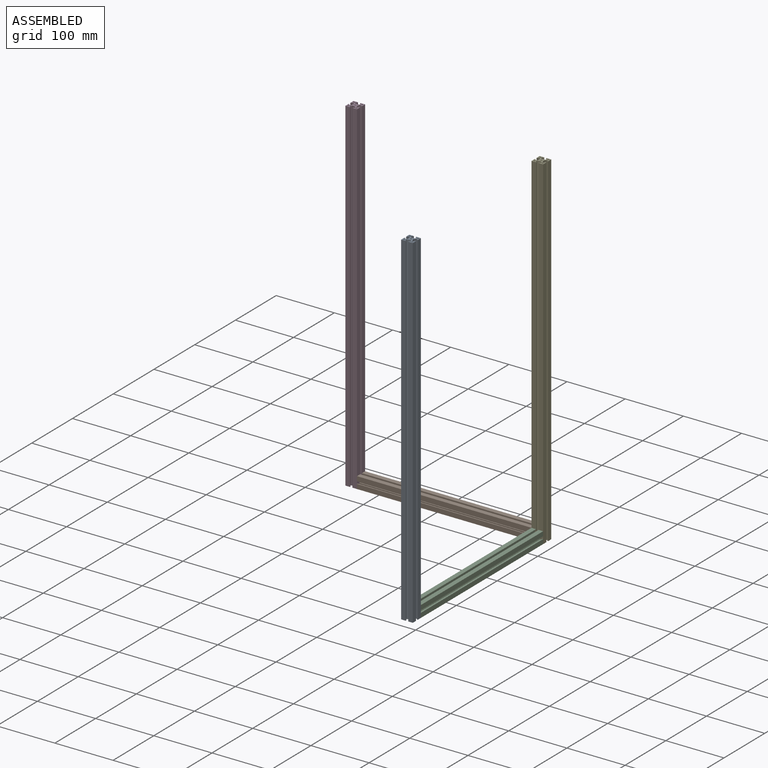
[diagram: assembled view]
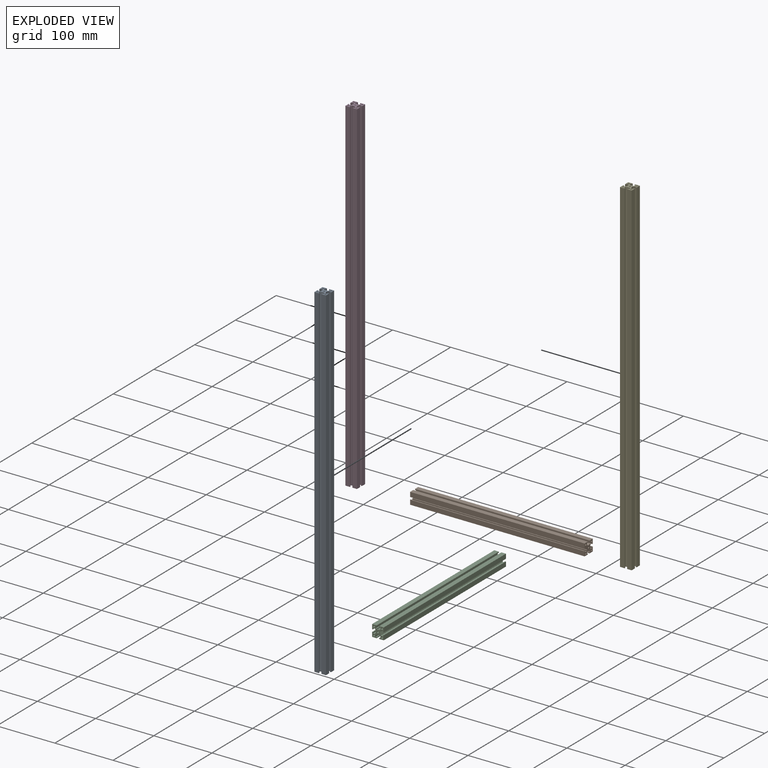
[diagram: exploded view]
GUIDED TOUR — MATED ASSEMBLY (Onshape document d7d5ee20f3b3feef771122a2, AutoMate assembly d7d5ee20f3b3feef771122a2_34c85ee1a74209291e5ee095_835ac0c75a57625ac6b1f9aa_default)

This assembly has 5 components, labeled P0..P4 below (a component is one placed occurrence of a part; the same part can appear more than once), held together by 12 mates. A mate is a constraint between two components; its type names the relative motion it leaves free:
  PLANAR — leaves sliding in the plane through the listed point (normal = the listed direction) and rotation about that normal free.
Axis/direction vectors are unit vectors and 'through' points are millimeter coordinates, both in the assembly's world frame.

MATES
  1. PLANAR "Planar 5": P3 <-> P1, direction (0.000, 0.000, -1.000) through (67.06, -72.79, 283.51) mm
  2. PLANAR "Planar 3": P1 <-> P4, direction (1.000, 0.000, 0.000) through (377.06, -69.49, 295.66) mm
  3. PLANAR "Planar 11": P2 <-> P0, direction (1.000, 0.000, 0.000) through (397.06, -232.79, 287.43) mm
  4. PLANAR "Planar 2": P4 <-> P1, direction (0.000, 0.000, -1.000) through (388.06, -68.74, 283.51) mm
  5. PLANAR "Planar 9": P4 <-> P2, direction (1.000, 0.000, 0.000) through (397.06, -78.87, 578.51) mm
  6. PLANAR "Planar 10": P2 <-> P0, direction (0.000, -1.000, 0.000) through (387.06, -382.79, 293.51) mm
  7. PLANAR "Planar 4": P3 <-> P1, direction (1.000, 0.000, 0.000) through (77.06, -66.72, 578.51) mm
  8. PLANAR "Planar 8": P2 <-> P4, direction (0.000, 0.000, -1.000) through (380.98, -232.79, 283.51) mm
  9. PLANAR "Planar 1": P4 <-> P1, direction (0.000, -1.000, 0.000) through (393.13, -82.79, 578.51) mm
  10. PLANAR "Planar 6": P3 <-> P1, direction (0.000, 1.000, 0.000) through (73.13, -62.79, 578.51) mm
  11. PLANAR "Planar 12": P0 <-> P2, direction (0.000, 0.000, -1.000) through (383.01, -391.79, 283.51) mm
  12. PLANAR "Planar 7": P2 <-> P4, direction (0.000, 1.000, 0.000) through (387.06, -82.79, 293.51) mm

ASSEMBLY ORDER
  1. P3 — the base component [order verified]
  2. P1 [order verified]
  3. P4 [order verified]
  4. P2 [order verified]
  5. P0 [order verified]
Order-tag legend:
  [order verified] — this step's position reverses a verified removal order: the component was checked to insert without passing through the ones already placed.

Of the 5 components, 2 carry the full construction recipe — the FeatureScript program that regenerates the part's solid from scratch; the rest are supplied as boundary geometry only.
Each toured component is shown spotlighted twice — in the assembled view, then in the exploded view, where a leader line traces a displaced component back to its assembled socket (saturated green if recipe-attached, orange if geometry-only; every other component desaturated gray) — followed by its recipe or geometry summary and the mates that hold it.
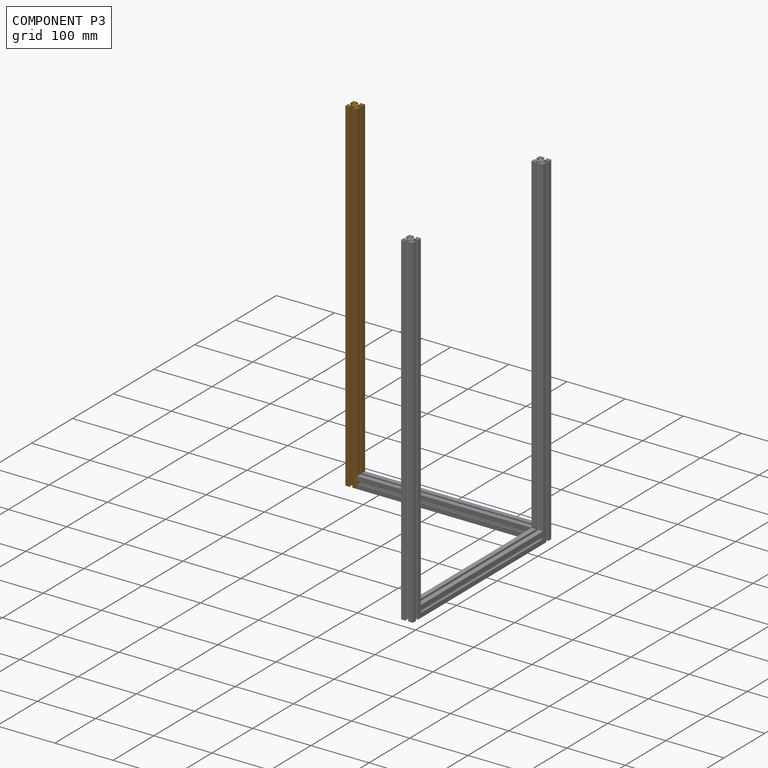
[diagram: component P3 — assembled]
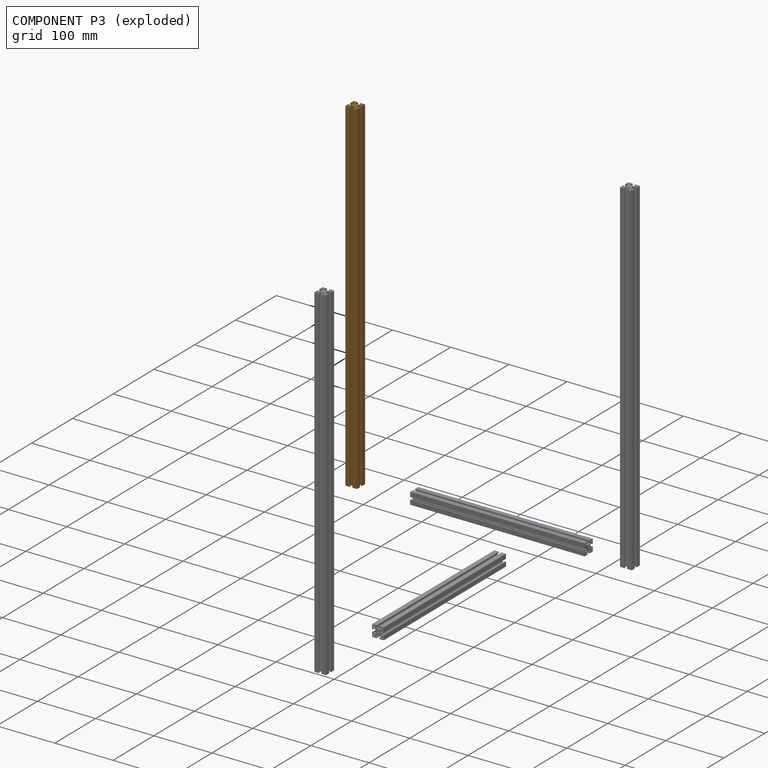
[diagram: component P3 — exploded]
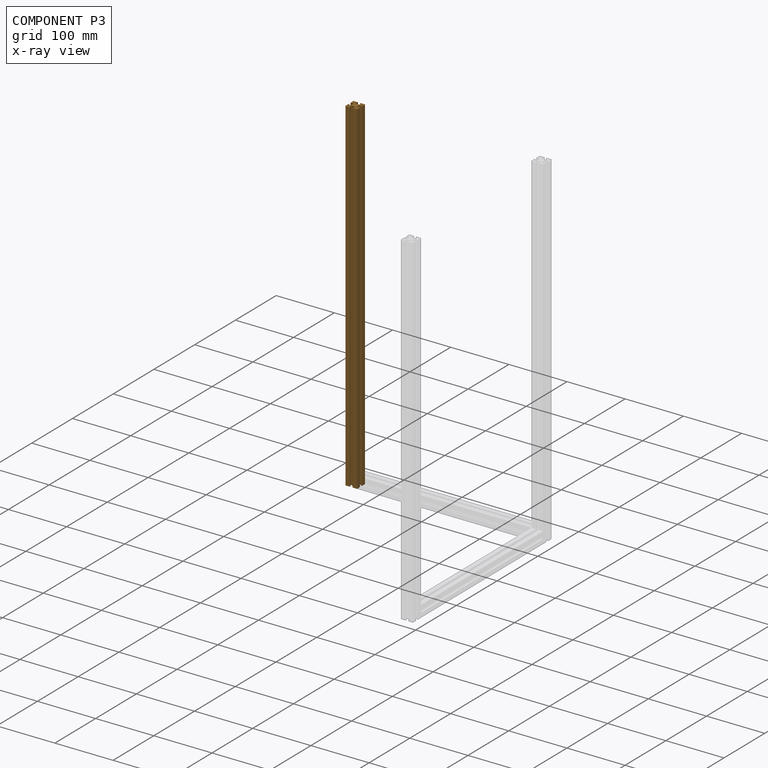
[diagram: component P3 — x-ray view]
COMPONENT P3 — geometry summary (no construction recipe available for this part):
  bounding box: 590.0 x 20.0 x 20.0 mm
  B-rep topology: 1 solid, 51 faces, 294 edges
  volume: 116299 mm^3 (49% of its bounding box)
  symmetry: 2-fold rotationally symmetric about the x axis; 2-fold rotationally symmetric about the y axis; 4-fold rotationally symmetric about the z axis; mirror-symmetric across its x mid-plane, y mid-plane, z mid-plane
Held by: PLANAR mate "Planar 5" to P1; PLANAR mate "Planar 4" to P1; PLANAR mate "Planar 6" to P1.
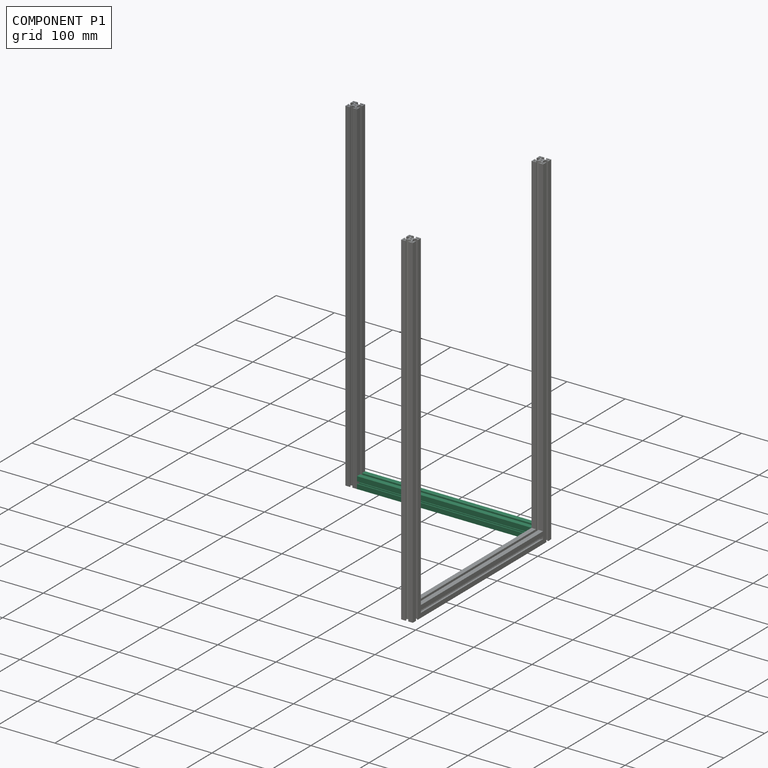
[diagram: component P1 — assembled]
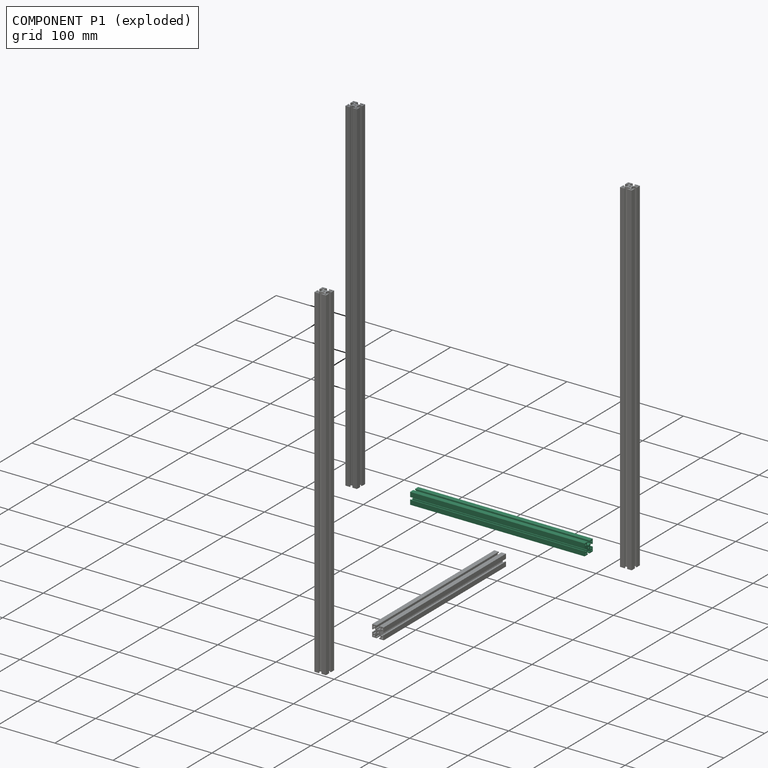
[diagram: component P1 — exploded]
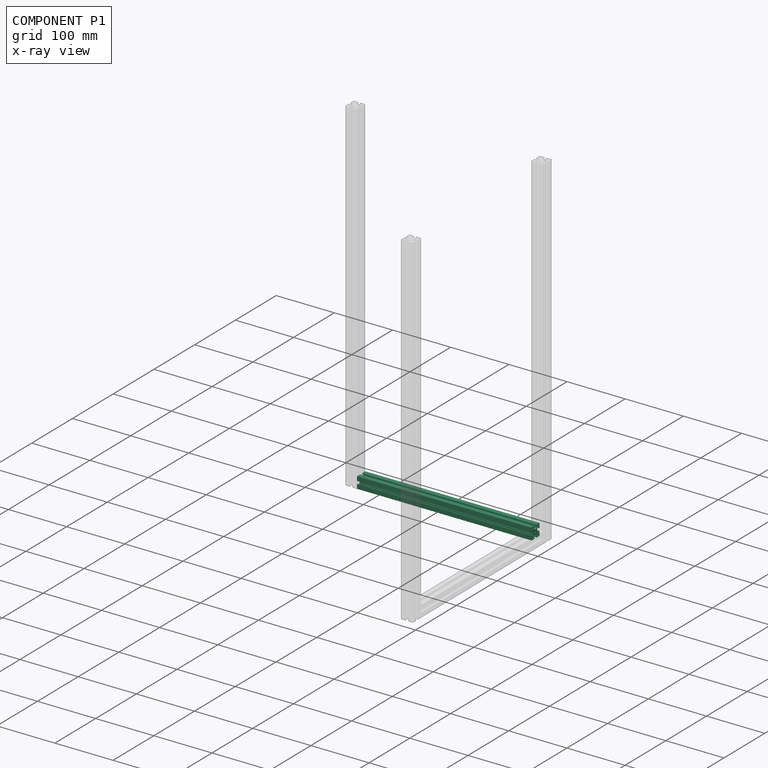
[diagram: component P1 — x-ray view]
COMPONENT P1 — recipe-attached (CADFS 00775080, mesh-verified: the recipe's output STEP matches this component's geometry to below the mesh-comparison resolution (tessellation chordal tolerance ~0.452 mm)).
Held by: PLANAR mate "Planar 5" to P3; PLANAR mate "Planar 3" to P4; PLANAR mate "Planar 2" to P4; PLANAR mate "Planar 4" to P3; PLANAR mate "Planar 1" to P4; PLANAR mate "Planar 6" to P3.
Construction recipe (FeatureScript — the CAD program that rebuilds this solid; sketch coordinates are in the units given by the * unit suffixes, e.g. mm):

FeatureScript 1511;
import(path : "onshape/std/geometry.fs", version : "1511.0");
import(path : "onshape/std/common.fs", version : "1511.0");
const mm = millimeter;
const VERTEX = EntityType.VERTEX;
const EDGE = EntityType.EDGE;
const FACE = EntityType.FACE;
const BODY = EntityType.BODY;
function v(x, y){return vector(x, y);}
function OD(order){return orderDisambiguation(order);}
function OSD(set){return originalSetDisambiguation(set);}
function TD(topology){return topologyDisambiguation(topology);}
function TDD(query){return trueDependencyDisambiguation(query);}
function sQuery(a, b, c) {return sketchEntityQuery(a, b, c);}

annotation { "Feature Type Name" : "Feature", "Feature Type Description" : "" }
export const myFeature = defineFeature(function(context is Context, id is Id, definition is map)
    precondition{}
    {
        {
            var Q0;
            Q0=qCreatedBy(makeId("Top.planeOp"),FACE);
            var sketch = newSketch(context, id + "F0", { "sketchPlane" : qUnion([Q0])});
            skLineSegment(sketch, "E0.bottom", {"start": v(-9.98, 10.12) * mm, "end": v(-2.13, 10.12) * mm});
            skLineSegment(sketch, "E0.top", {"start": v(-9.98, -9.88) * mm, "end": v(-2.13, -9.88) * mm});
            skLineSegment(sketch, "E0.left", {"start": v(-9.98, 10.12) * mm, "end": v(-9.98, 2.27) * mm});
            skLineSegment(sketch, "E0.right", {"start": v(10.02, 10.12) * mm, "end": v(10.02, 2.27) * mm});
            skLineSegment(sketch, "E1.0", {"start": v(-9.98, -6.88) * mm, "end": v(10.02, -6.88) * mm, "construction": true});
            skLineSegment(sketch, "E2.0", {"start": v(-9.98, 7.12) * mm, "end": v(10.02, 7.12) * mm, "construction": true});
            skPoint(sketch, "E3.endSnap0", {"position": v(0.02, -6.88) * mm});
            skLineSegment(sketch, "E4.0", {"start": v(7.02, -9.88) * mm, "end": v(7.02, 10.12) * mm, "construction": true});
            skLineSegment(sketch, "E5.0", {"start": v(-6.98, -9.88) * mm, "end": v(-6.98, 10.12) * mm, "construction": true});
            skLineSegment(sketch, "E6.0", {"start": v(-4.13, 8.62) * mm, "end": v(-2.13, 8.62) * mm});
            skLineSegment(sketch, "E7.0", {"start": v(-4.13, 4.92) * mm, "end": v(-2.13, 4.92) * mm});
            skLineSegment(sketch, "E8.trimOffspring", {"start": v(2.17, 8.62) * mm, "end": v(2.17, 10.12) * mm});
            skLineSegment(sketch, "E9.trimOffspring", {"start": v(4.17, 4.92) * mm, "end": v(4.17, 8.62) * mm});
            skLineSegment(sketch, "E10.MirrorCS", {"start": v(-2.13, 8.62) * mm, "end": v(-2.13, 10.12) * mm});
            skLineSegment(sketch, "E11", {"start": v(-2.13, 3.42) * mm, "end": v(4.17, 4.92) * mm});
            skLineSegment(sketch, "E12.trimOffspring", {"start": v(-2.13, 4.92) * mm, "end": v(-2.13, 3.42) * mm});
            skLineSegment(sketch, "E13.MirrorCS", {"start": v(-4.13, 4.92) * mm, "end": v(-4.13, 8.62) * mm});
            skLineSegment(sketch, "E14.trimOffspring", {"start": v(2.17, 8.62) * mm, "end": v(4.17, 8.62) * mm});
            skLineSegment(sketch, "E15.trimOffspring", {"start": v(2.17, 10.12) * mm, "end": v(10.02, 10.12) * mm});
            skLineSegment(sketch, "E16.1.0", {"start": v(4.82, 4.27) * mm, "end": v(4.82, 2.27) * mm});
            skLineSegment(sketch, "E16.1.1", {"start": v(8.52, 4.27) * mm, "end": v(8.52, 2.27) * mm});
            skLineSegment(sketch, "E16.1.2", {"start": v(3.32, 2.27) * mm, "end": v(4.82, -4.03) * mm});
            skLineSegment(sketch, "E16.1.3", {"start": v(8.52, 2.27) * mm, "end": v(10.02, 2.27) * mm});
            skLineSegment(sketch, "E16.1.4", {"start": v(4.82, -4.03) * mm, "end": v(8.52, -4.03) * mm});
            skLineSegment(sketch, "E16.1.5", {"start": v(4.82, 4.27) * mm, "end": v(8.52, 4.27) * mm});
            skLineSegment(sketch, "E16.1.6", {"start": v(4.82, 2.27) * mm, "end": v(3.32, 2.27) * mm});
            skLineSegment(sketch, "E16.1.7", {"start": v(8.52, -2.03) * mm, "end": v(8.52, -4.03) * mm});
            skLineSegment(sketch, "E16.1.8", {"start": v(8.52, -2.03) * mm, "end": v(10.02, -2.03) * mm});
            skLineSegment(sketch, "E16.2.0", {"start": v(4.17, -4.68) * mm, "end": v(2.17, -4.68) * mm});
            skLineSegment(sketch, "E16.2.1", {"start": v(4.17, -8.38) * mm, "end": v(2.17, -8.38) * mm});
            skLineSegment(sketch, "E16.2.2", {"start": v(2.17, -3.18) * mm, "end": v(-4.13, -4.68) * mm});
            skLineSegment(sketch, "E16.2.3", {"start": v(2.17, -8.38) * mm, "end": v(2.17, -9.88) * mm});
            skLineSegment(sketch, "E16.2.4", {"start": v(-4.13, -4.68) * mm, "end": v(-4.13, -8.38) * mm});
            skLineSegment(sketch, "E16.2.5", {"start": v(4.17, -4.68) * mm, "end": v(4.17, -8.38) * mm});
            skLineSegment(sketch, "E16.2.6", {"start": v(2.17, -4.68) * mm, "end": v(2.17, -3.18) * mm});
            skLineSegment(sketch, "E16.2.7", {"start": v(-2.13, -8.38) * mm, "end": v(-4.13, -8.38) * mm});
            skLineSegment(sketch, "E16.2.8", {"start": v(-2.13, -8.38) * mm, "end": v(-2.13, -9.88) * mm});
            skPoint(sketch, "E16.center", {"position": v(0.02, 0.12) * mm});
            skLineSegment(sketch, "E17.trimOffspring", {"start": v(10.02, -2.03) * mm, "end": v(10.02, -9.88) * mm});
            skLineSegment(sketch, "E18.trimOffspring", {"start": v(2.17, -9.88) * mm, "end": v(10.02, -9.88) * mm});
            skPoint(sketch, "E19.1.7", {"position": v(-4.93, -4.83) * mm});
            skLineSegment(sketch, "E19.2.0", {"start": v(-8.48, 2.27) * mm, "end": v(-9.98, 2.27) * mm});
            skLineSegment(sketch, "E19.2.1", {"start": v(-8.48, -4.03) * mm, "end": v(-8.48, -2.03) * mm});
            skLineSegment(sketch, "E19.2.2", {"start": v(-4.78, 4.27) * mm, "end": v(-8.48, 4.27) * mm});
            skLineSegment(sketch, "E19.2.3", {"start": v(-4.78, -2.03) * mm, "end": v(-3.28, -2.03) * mm});
            skLineSegment(sketch, "E19.2.4", {"start": v(-8.48, -2.03) * mm, "end": v(-9.98, -2.03) * mm});
            skLineSegment(sketch, "E19.2.5", {"start": v(-8.48, 2.27) * mm, "end": v(-8.48, 4.27) * mm});
            skLineSegment(sketch, "E19.2.6", {"start": v(-4.78, -4.03) * mm, "end": v(-4.78, -2.03) * mm});
            skPoint(sketch, "E19.2.7", {"position": v(-6.98, 0.12) * mm});
            skLineSegment(sketch, "E19.2.8", {"start": v(-3.28, -2.03) * mm, "end": v(-4.78, 4.27) * mm});
            skLineSegment(sketch, "E19.2.9", {"start": v(-4.78, -4.03) * mm, "end": v(-8.48, -4.03) * mm});
            skLineSegment(sketch, "E20.trimOffspring", {"start": v(-9.98, -2.03) * mm, "end": v(-9.98, -9.88) * mm});
            skCircle(sketch, "E21", {"center": v(-6.98, 7.12) * mm, "radius": 1.5 * mm});
            skCircle(sketch, "E22", {"center": v(7.02, 7.12) * mm, "radius": 1.5 * mm});
            skCircle(sketch, "E23", {"center": v(7.02, -6.88) * mm, "radius": 1.5 * mm});
            skCircle(sketch, "E24", {"center": v(-6.98, -6.88) * mm, "radius": 1.5 * mm});
            skCircle(sketch, "E25", {"center": v(0.02, 0.12) * mm, "radius": 1.5 * mm});
            skSolve(sketch);
        }
        {
            var Q0;
            Q0=makeQuery(id+"F0.imprint","IMPRINT",FACE,{"disambiguationData":[TD([[makeQuery(id+"F0.imprint","IMPRINT",EDGE,{"derivedFrom":sQuery(id+"F0.wireOp",EDGE,"E0.bottom")}),-1.0]])]});
            extrude(context, id + "F1", {"entities" : qUnion([Q0]), "depth" : 300 * mm, "offsetDistance" : 25 * mm});
        }
    });
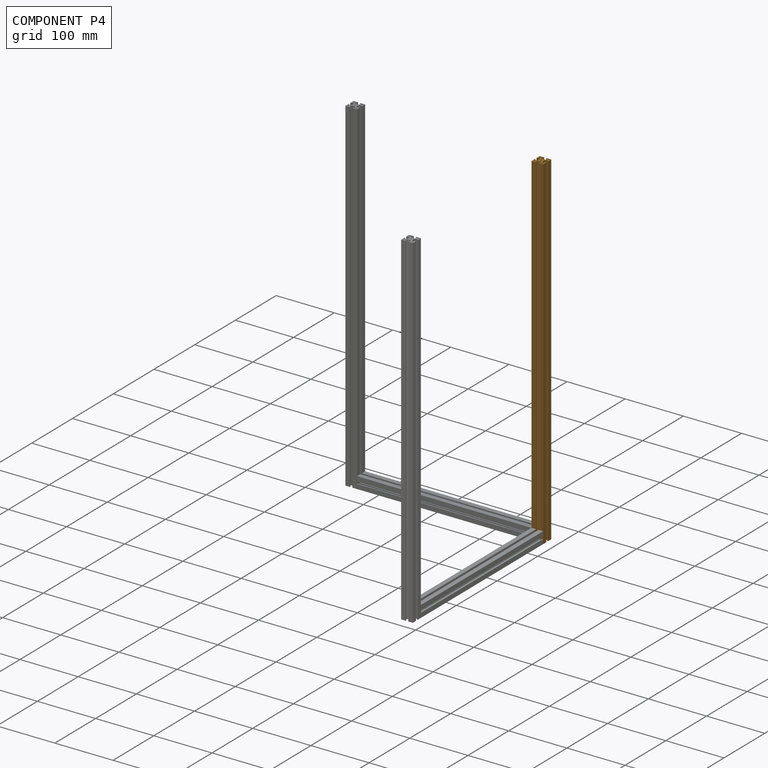
[diagram: component P4 — assembled]
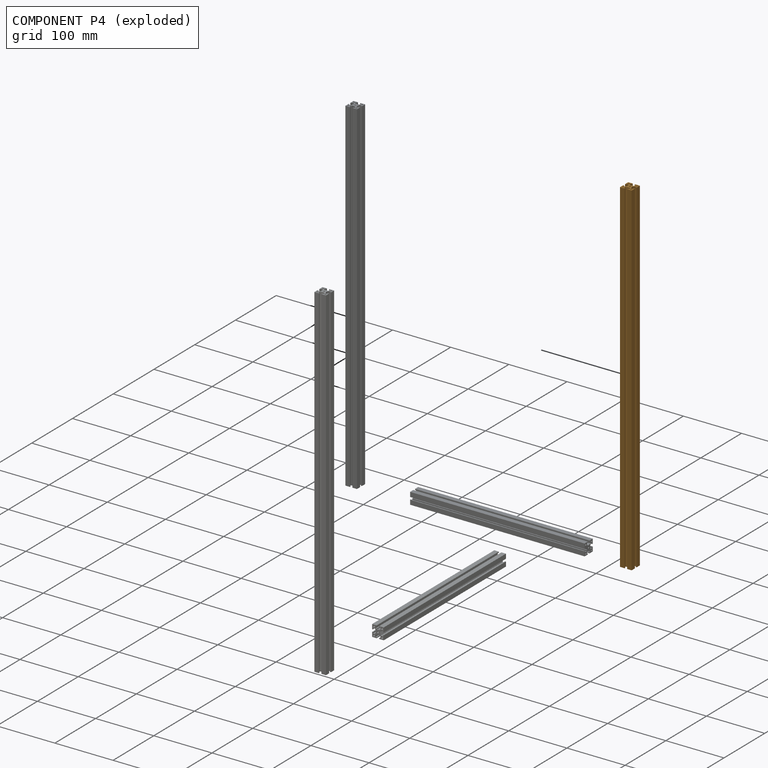
[diagram: component P4 — exploded]
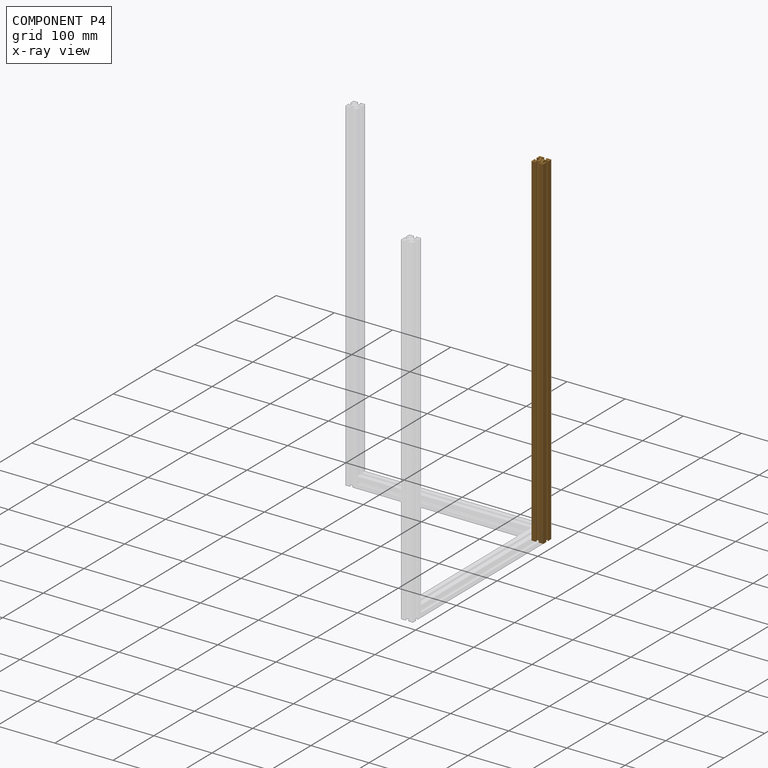
[diagram: component P4 — x-ray view]
COMPONENT P4 — geometry summary (no construction recipe available for this part):
  bounding box: 590.0 x 20.0 x 20.0 mm
  B-rep topology: 1 solid, 51 faces, 294 edges
  volume: 116299 mm^3 (49% of its bounding box)
  symmetry: 2-fold rotationally symmetric about the x axis; 2-fold rotationally symmetric about the y axis; 4-fold rotationally symmetric about the z axis; mirror-symmetric across its x mid-plane, y mid-plane, z mid-plane
Held by: PLANAR mate "Planar 3" to P1; PLANAR mate "Planar 2" to P1; PLANAR mate "Planar 9" to P2; PLANAR mate "Planar 8" to P2; PLANAR mate "Planar 1" to P1; PLANAR mate "Planar 7" to P2.
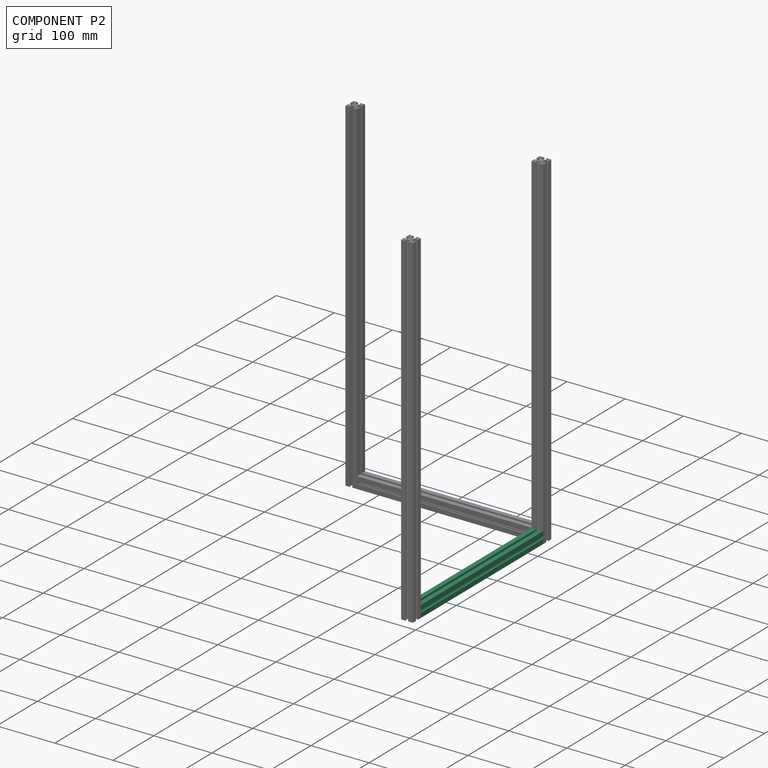
[diagram: component P2 — assembled]
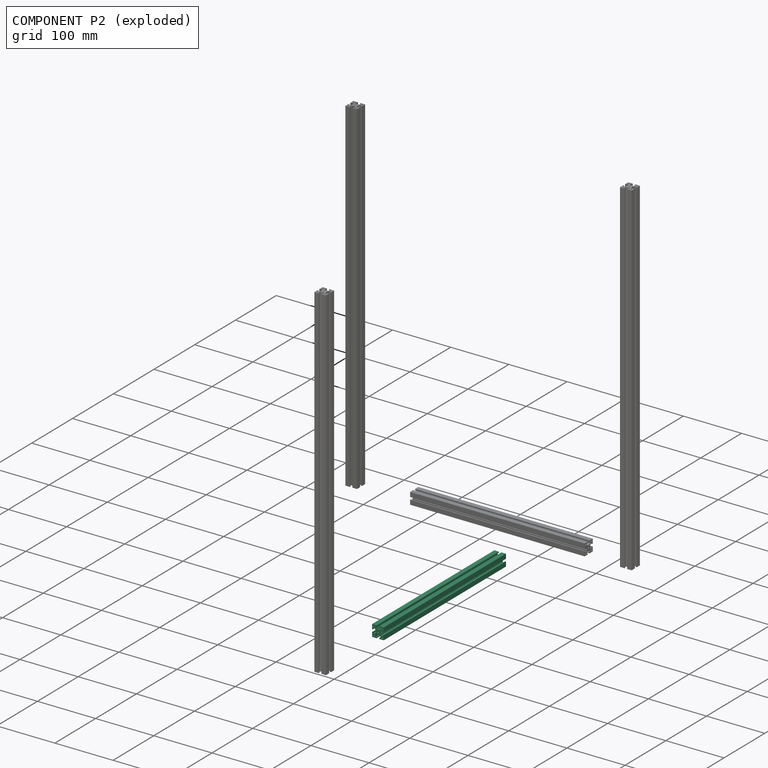
[diagram: component P2 — exploded]
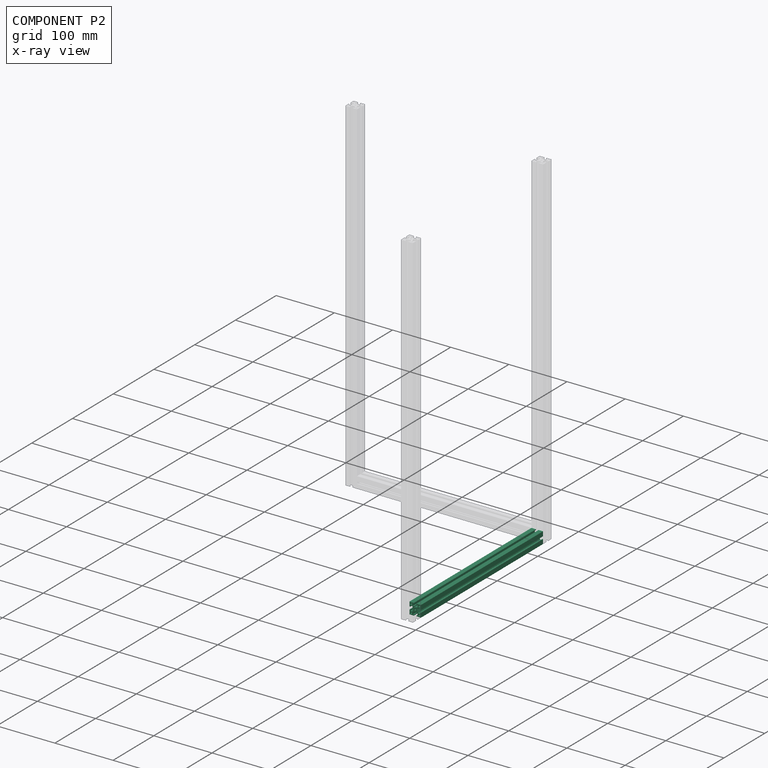
[diagram: component P2 — x-ray view]
COMPONENT P2 — same part as P1 (CADFS 00775080); its construction recipe is shown at P1.
Held by: PLANAR mate "Planar 11" to P0; PLANAR mate "Planar 9" to P4; PLANAR mate "Planar 10" to P0; PLANAR mate "Planar 8" to P4; PLANAR mate "Planar 12" to P0; PLANAR mate "Planar 7" to P4.
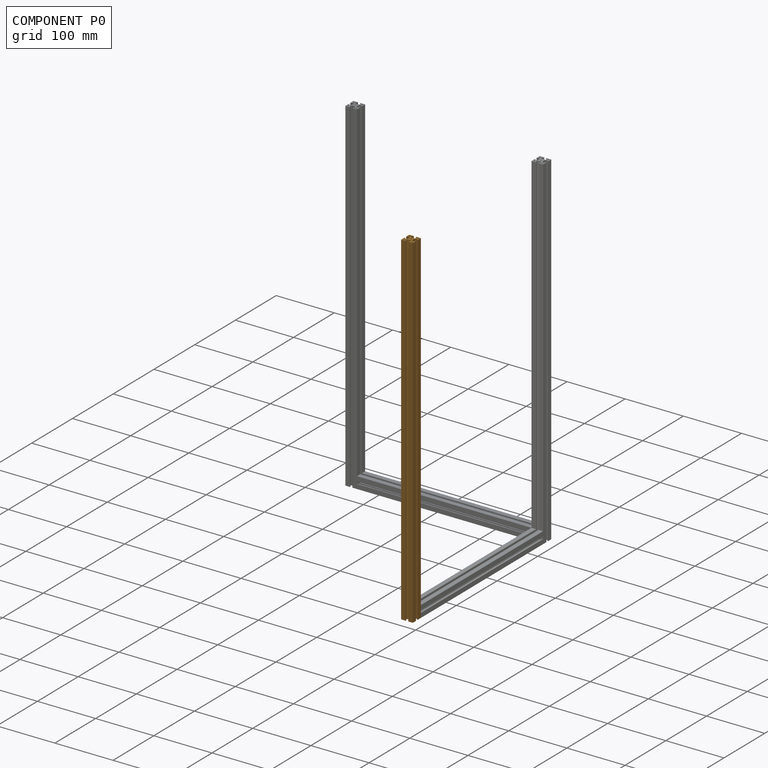
[diagram: component P0 — assembled]
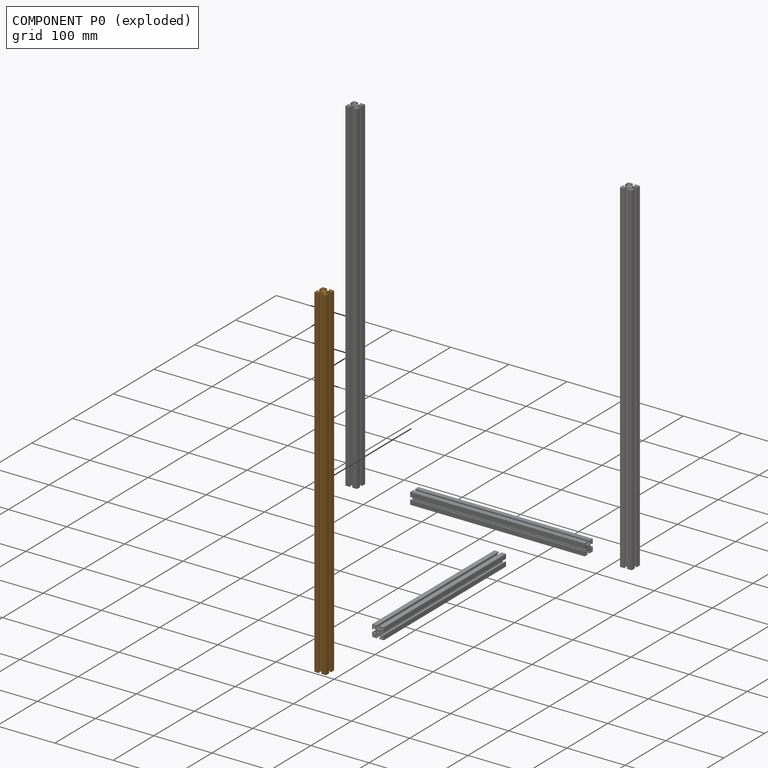
[diagram: component P0 — exploded]
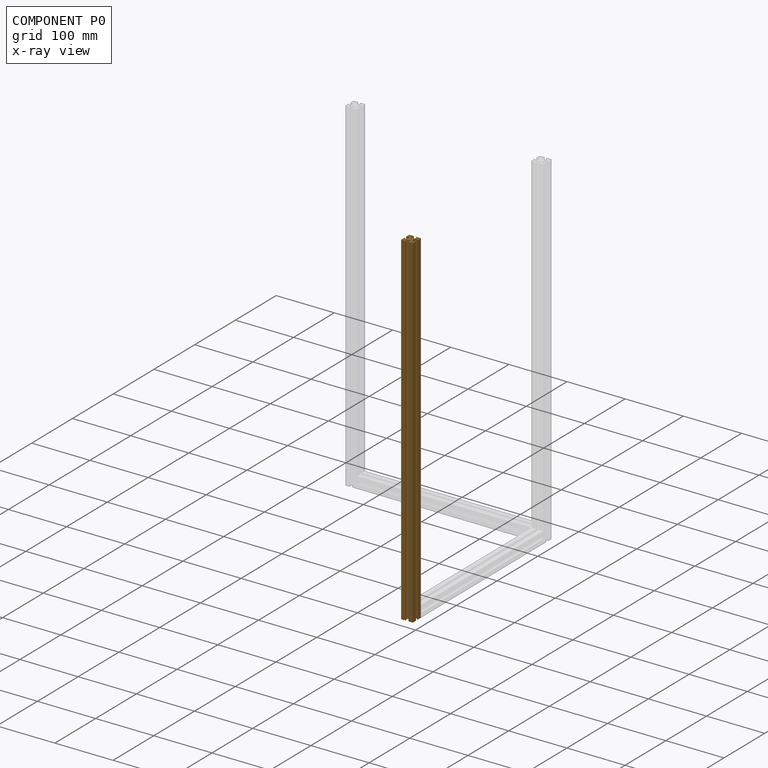
[diagram: component P0 — x-ray view]
COMPONENT P0 — geometry summary (no construction recipe available for this part):
  bounding box: 590.0 x 20.0 x 20.0 mm
  B-rep topology: 1 solid, 51 faces, 294 edges
  volume: 116299 mm^3 (49% of its bounding box)
  symmetry: 2-fold rotationally symmetric about the x axis; 2-fold rotationally symmetric about the y axis; 4-fold rotationally symmetric about the z axis; mirror-symmetric across its x mid-plane, y mid-plane, z mid-plane
Held by: PLANAR mate "Planar 11" to P2; PLANAR mate "Planar 10" to P2; PLANAR mate "Planar 12" to P2.
PROVENANCE & LICENSES
Assembly (occurrences, transforms, mates, per-part STEP geometry): AutoMate dataset, Zenodo record 7776208, CC0.
Construction recipes: CADFS (HuggingFace VladPyatov/CADFS, CC-BY-4.0, layered over the ABC dataset), FeatureScript reconstruction programs keyed by ABC model id.
Join: ABC meta listings map ABC model id -> Onshape documentId; within a shared document, parts are matched by geometric signature (bounding-box dims + volume at 0.1% relative tolerance, exact B-rep face/solid counts).
Verification: 2 of this assembly's 5 components carry a recipe attachment, and every attachment is mesh-verified: the CADFS STEP and the AutoMate member STEP were compared as meshes in their shared local frame (symmetric sampled-point-to-mesh distance); worst across the 2 attachments: below the mesh-comparison resolution (tessellation chordal tolerance ~0.452 mm) on a 301 mm part.
Renders: orthographic iso camera (az 35 / el 25); the floor grid conveys scale (grid pitch printed in each image; no ruler). In the exploded view each component is displaced by its stored offset vector: the offsets alone carry the explosion direction (mate normal/axis signs are not orientation cues and do not encode it), and separation distances are assigned per mate-chain, not proportionally to assembly-order depth.
